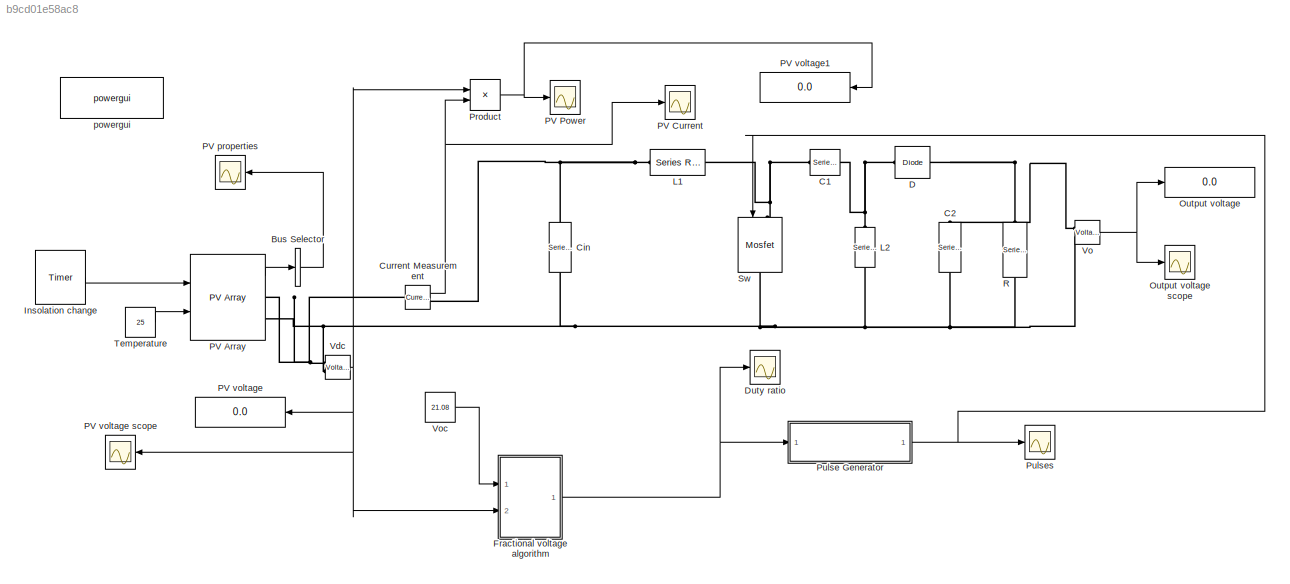
MODEL slx_b9cd01e58ac8
KIND model
CONFIG AbsTol = auto
CONFIG FixedStep = auto
CONFIG MaxStep = auto
CONFIG MinStep = auto
CONFIG RelTol = 1e-3
CONFIG SampleTimeConstraint = Unconstrained
CONFIG Solver = ode45
CONFIG SolverMode = Auto
CONFIG SolverName = ode45
CONFIG StartTime = 0.0
CONFIG StopTime = 10
BLOCK [BusSelector] Bus Selector
  OutputAsBus = on
  OutputSignals = V_PV,I_PV
  Ports = [1, 1]
BLOCK [Reference] C1  REF=powerlib/Elements/Series RLC Branch
  BranchType = C
  Capacitance = 20e-6
  Inductance = 1e-3
  InitialCurrent = 0
  InitialVoltage = 0
  LConnTagsString = __new0
  Measurements = None
  Ports = [0, 0, 0, 0, 0, 1, 1]
  RConnTagsString = __new0
  Resistance = 100
  SetiL0 = off
  Setx0 = off
  SourceBlock = powerlib/Elements/Series RLC Branch
  SourceType = Series RLC Branch
BLOCK [Reference] C2  REF=powerlib/Elements/Series RLC Branch
  BranchType = C
  Capacitance = 150e-6
  Inductance = 1e-3
  InitialCurrent = 0
  InitialVoltage = 0
  LConnTagsString = __new0
  Measurements = None
  Ports = [0, 0, 0, 0, 0, 1, 1]
  RConnTagsString = __new0
  Resistance = 1
  SetiL0 = off
  Setx0 = off
  SourceBlock = powerlib/Elements/Series RLC Branch
  SourceType = Series RLC Branch
BLOCK [Reference] Cin  REF=powerlib/Elements/Series RLC Branch
  BranchType = C
  Capacitance = 440e-6
  Inductance = 1e-3
  InitialCurrent = 0
  InitialVoltage = 0
  LConnTagsString = __new0
  Measurements = None
  Ports = [0, 0, 0, 0, 0, 1, 1]
  RConnTagsString = __new0
  Resistance = 1
  SetiL0 = off
  Setx0 = off
  SourceBlock = powerlib/Elements/Series RLC Branch
  SourceType = Series RLC Branch
BLOCK [Reference] Current Measurement  REF=powerlib/Measurements/Current Measurement
  OutputType = Complex
  PSBequivalent = 0
  PhasorSimulation = off
  Ports = [0, 1, 0, 0, 0, 1, 1]
  SourceBlock = powerlib/Measurements/Current Measurement
  SourceType = Current Measurement
  UserDataPersistent = on
BLOCK [Reference] D  REF=powerlib/Power
Electronics/Diode
  Cs = 250e-9
  IC = 0
  Lon = 0
  Measurements = off
  Ports = [0, 0, 0, 0, 0, 1, 1]
  Ron = 0.001
  Rs = 500
  SourceBlock = powerlib/Power\nElectronics/Diode
  SourceType = Diode
  UseSnubber = off
  Vf = .05
BLOCK [Scope] Duty ratio
  DataFormat = StructureWithTime
  Floating = off
  LimitDataPoints = off
  NumInputPorts = 1
  Ports = [1]
  SampleTime = 0
  SaveName = ScopeData1
  SaveToWorkspace = on
  ShowLegends = on
  TimeRange = 1
  YMax = -117000
  YMin = -138000
  ZoomMode = xonly
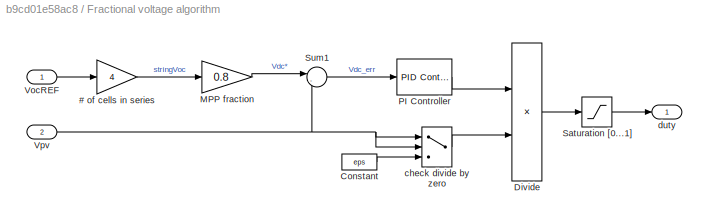
BLOCK [SubSystem] Fractional voltage algorithm
  Ports = [2, 1]
  RequestExecContextInheritance = off
BLOCK [Gain] Fractional voltage algorithm/# of cells in series
  Gain = 4
  OutDataTypeStr = Inherit: Inherit via internal rule
  ParamDataTypeStr = Inherit: Inherit via internal rule
  SaturateOnIntegerOverflow = off
BLOCK [Constant] Fractional voltage algorithm/Constant
  Value = eps
BLOCK [Product] Fractional voltage algorithm/Divide
  InputSameDT = off
  Inputs = */
  OutDataTypeStr = Inherit: Inherit via internal rule
  Ports = [2, 1]
  RndMeth = Floor
  SaturateOnIntegerOverflow = off
BLOCK [Gain] Fractional voltage algorithm/MPP fraction
  Gain = 0.8
  OutDataTypeStr = Inherit: Inherit via internal rule
  ParamDataTypeStr = Inherit: Inherit via internal rule
  SaturateOnIntegerOverflow = off
BLOCK [Reference] Fractional voltage algorithm/PI Controller  REF=simulink/Continuous/PID Controller
  AntiWindupMode = none
  Controller = PI
  ControllerParametersSource = internal
  D = 0
  DGainOutDataTypeStr = Inherit: Inherit via internal rule
  DOutDataTypeStr = Inherit: Inherit via internal rule
  DOutMax = []
  DOutMin = []
  DParamDataTypeStr = Inherit: Inherit via internal rule
  DParamMax = []
  DParamMin = []
  DProdOutDataTypeStr = Inherit: Inherit via internal rule
  DifferentiatorICPrevScaledInput = 0
  DifferentiatorOutDataTypeStr = Inherit: Inherit via internal rule
  DifferentiatorOutMax = []
  DifferentiatorOutMin = []
  ExternalReset = none
  FilterContinuousStateAttributes = ''
  FilterMethod = Forward Euler
  FilterOutDataTypeStr = Inherit: Inherit via internal rule
  FilterOutMax = []
  FilterOutMin = []
  FilterRTWStateStorageClass = Auto
  FilterStateMustResolveToSignalObject = off
  Form = Parallel
  I = 250
  IGainOutDataTypeStr = Inherit: Inherit via internal rule
  IOutDataTypeStr = Inherit: Inherit via internal rule
  IOutMax = []
  IOutMin = []
  IParamDataTypeStr = Inherit: Inherit via internal rule
  IParamMax = []
  IParamMin = []
  IProdOutDataTypeStr = Inherit: Inherit via internal rule
  IgnoreLimit = off
  InitialConditionForFilter = 0
  InitialConditionForIntegrator = 186.4
  InitialConditionSource = internal
  IntegratorContinuousStateAttributes = ''
  IntegratorMethod = Forward Euler
  IntegratorOutDataTypeStr = Inherit: Inherit via internal rule
  IntegratorOutMax = []
  IntegratorOutMin = []
  IntegratorRTWStateStorageClass = Auto
  IntegratorStateMustResolveToSignalObject = off
  Kb = 1
  KbOutDataTypeStr = Inherit: Inherit via internal rule
  KbOutMax = []
  KbOutMin = []
  KbParamDataTypeStr = Inherit: Inherit via internal rule
  KbParamMax = []
  KbParamMin = []
  Kt = 1
  KtOutDataTypeStr = Inherit: Inherit via internal rule
  KtOutMax = []
  KtOutMin = []
  KtParamDataTypeStr = Inherit: Inherit via internal rule
  KtParamMax = []
  KtParamMin = []
  LimitOutput = off
  LinearizeAsGain = off
  LockScale = off
  LowerSaturationLimit = 0
  N = 100
  NGainOutDataTypeStr = Inherit: Inherit via internal rule
  NOutDataTypeStr = Inherit: Inherit via internal rule
  NOutMax = []
  NOutMin = []
  NParamDataTypeStr = Inherit: Inherit via internal rule
  NParamMax = []
  NParamMin = []
  NProdOutDataTypeStr = Inherit: Inherit via internal rule
  P = 1
  PGainOutDataTypeStr = Inherit: Inherit via internal rule
  POutDataTypeStr = Inherit: Inherit via internal rule
  POutMax = []
  POutMin = []
  PParamDataTypeStr = Inherit: Inherit via internal rule
  PParamMax = []
  PParamMin = []
  PProdOutDataTypeStr = Inherit: Inherit via internal rule
  Ports = [1, 1]
  RndMeth = Floor
  SampleTime = 1e-4
  SaturateOnIntegerOverflow = off
  SaturationOutDataTypeStr = Inherit: Same as input
  SaturationOutMax = []
  SaturationOutMin = []
  SourceBlock = simulink/Continuous/PID Controller
  SourceType = PID 1dof
  SumAccumDataTypeStr = Inherit: Inherit via internal rule
  SumDAccumDataTypeStr = Inherit: Inherit via internal rule
  SumDOutDataTypeStr = Inherit: Inherit via internal rule
  SumDOutMax = []
  SumDOutMin = []
  SumI1AccumDataTypeStr = Inherit: Inherit via internal rule
  SumI1OutDataTypeStr = Inherit: Inherit via internal rule
  SumI1OutMax = []
  SumI1OutMin = []
  SumI2AccumDataTypeStr = Inherit: Inherit via internal rule
  SumI2OutDataTypeStr = Inherit: Inherit via internal rule
  SumI2OutMax = []
  SumI2OutMin = []
  SumI3AccumDataTypeStr = Inherit: Inherit via internal rule
  SumI3OutDataTypeStr = Inherit: Inherit via internal rule
  SumI3OutMax = []
  SumI3OutMin = []
  SumOutDataTypeStr = Inherit: Inherit via internal rule
  SumOutMax = []
  SumOutMin = []
  TimeDomain = Discrete-time
  TrackingMode = off
  UpperSaturationLimit = 1
  UseFilter = on
  ZeroCross = off
BLOCK [Saturate] Fractional voltage algorithm/Saturation [0...1]
  InputPortMap = u0
  LowerLimit = 0
  Ports = [1, 1]
  UpperLimit = 1
BLOCK [Sum] Fractional voltage algorithm/Sum1
  IconShape = round
  InputSameDT = off
  Inputs = |-+
  OutDataTypeStr = Inherit: Inherit via internal rule
  Ports = [2, 1]
  SaturateOnIntegerOverflow = off
BLOCK [Inport] Fractional voltage algorithm/VocREF
  IconDisplay = Port number
  OutDataTypeStr = double
  PortDimensions = 1
  SampleTime = [0.0001,0]
  SamplingMode = Sample based
  SignalType = real
BLOCK [Inport] Fractional voltage algorithm/Vpv
  IconDisplay = Port number
  OutDataTypeStr = double
  Port = 2
  PortDimensions = 1
  SampleTime = [0.0001,0]
  SamplingMode = Sample based
  SignalType = real
BLOCK [Switch] Fractional voltage algorithm/check divide by zero
  Criteria = u2 ~= 0
  InputSameDT = off
  SaturateOnIntegerOverflow = off
BLOCK [Outport] Fractional voltage algorithm/duty
  IconDisplay = Port number
  OutDataTypeStr = double
  PortDimensions = 1
  SampleTime = [0.0001,0]
  SamplingMode = Sample based
  SignalType = real
BLOCK [Reference] Insolation change  REF=powerlib_extras/Control 
Blocks/Timer
  Ports = [0, 1]
  SourceBlock = powerlib_extras/Control \nBlocks/Timer
  SourceType = Timer
  e = [270   480]
  t = [0  5]
BLOCK [Reference] L1  REF=powerlib/Elements/Series RLC Branch
  BranchType = L
  Capacitance = 1e-6
  Inductance = 90e-6
  InitialCurrent = 0
  InitialVoltage = 0
  LConnTagsString = __new0
  Measurements = None
  Ports = [0, 0, 0, 0, 0, 1, 1]
  RConnTagsString = __new0
  Resistance = 1
  SetiL0 = off
  Setx0 = off
  SourceBlock = powerlib/Elements/Series RLC Branch
  SourceType = Series RLC Branch
BLOCK [Reference] L2  REF=powerlib/Elements/Series RLC Branch
  BranchType = L
  Capacitance = 1e-6
  Inductance = 90e-6
  InitialCurrent = 0
  InitialVoltage = 0
  LConnTagsString = __new0
  Measurements = None
  Ports = [0, 0, 0, 0, 0, 1, 1]
  RConnTagsString = __new0
  Resistance = 1
  SetiL0 = off
  Setx0 = off
  SourceBlock = powerlib/Elements/Series RLC Branch
  SourceType = Series RLC Branch
BLOCK [Display] Output voltage
  Decimation = 1
  Ports = [1]
BLOCK [Scope] Output voltage scope
  DataFormat = StructureWithTime
  Floating = off
  LimitDataPoints = off
  NumInputPorts = 1
  Ports = [1]
  SampleTime = 0
  SaveName = ScopeData3
  SaveToWorkspace = on
  ShowLegends = on
  TimeRange = 1
  YMax = 2
  YMin = -1
  ZoomMode = xonly
BLOCK [Reference] PV Array  REF=re_lib/Solar/PV Array
  BAL = on
  I0 = 3.4157e-12
  IL = 1.2621
  Im = 1.18
  Isc = 1.26
  ModuleName = User-defined
  Ncell = 36
  Npar = 9
  Nser = 4
  PlotType = one module @ 25 deg.C & specified irradiances
  PlotWhenSelected = on
  Pm = 20.1544
  Ports = [2, 1, 0, 0, 0, 0, 2]
  Rs = 1.4265
  Rsh = 849.2491
  S_vec = [270 480]
  SourceBlock = re_lib/Solar/PV Array
  SourceType = PV array
  Tc = 1e-6
  Temp_C_vec = [ 45 25  ]
  Tfilter = 2e-5
  Vm = 17.08
  Voc = 21.17
  alpha_Isc = 0.00085806
  alpha_Isc_pc = 0.0681
  beta_Voc = -0.062261
  beta_Voc_pc = -0.2941
  nI = 0.85997
BLOCK [Scope] PV Current
  DataFormat = StructureWithTime
  Floating = off
  LimitDataPoints = off
  NumInputPorts = 1
  Ports = [1]
  SampleTime = 0
  SaveName = ScopeData7
  SaveToWorkspace = on
  ShowLegends = on
  TimeRange = 0.02
  YMax = 5.4284
  YMin = 5.4263
  ZoomMode = yonly
BLOCK [Scope] PV Power
  DataFormat = StructureWithTime
  Floating = off
  LegendLocations = 0.89697     0.78958    0.069016     0.02999
  LimitDataPoints = off
  NumInputPorts = 1
  Ports = [1]
  SampleTime = 0
  SaveName = ScopeData6
  SaveToWorkspace = on
  ShowLegends = on
  TimeRange = 0.02
  YMax = 93
  YMin = 82
  ZoomMode = xonly
BLOCK [Scope] PV properties
  DataFormat = StructureWithTime
  Floating = off
  LegendLocations = 0.82648      0.6529    0.093979    0.053097
  LimitDataPoints = off
  NumInputPorts = 1
  Ports = [1]
  SampleTime = 0
  SaveToWorkspace = on
  ShowLegends = on
  TimeRange = 0.02
  YMax = 317.457627118644
  YMin = 77.45762711864404
  ZoomMode = xonly
BLOCK [Display] PV voltage
  Decimation = 1
  Ports = [1]
BLOCK [Scope] PV voltage scope
  DataFormat = StructureWithTime
  Floating = off
  LimitDataPoints = off
  NumInputPorts = 1
  Ports = [1]
  SampleTime = 0
  SaveName = ScopeData5
  SaveToWorkspace = on
  TimeRange = 1
  YMax = 500
  YMin = 0
  ZoomMode = yonly
BLOCK [Display] PV voltage1
  Decimation = 1
  Ports = [1]
BLOCK [Product] Product
  InputSameDT = off
  OutDataTypeStr = Inherit: Inherit via internal rule
  Ports = [2, 1]
  RndMeth = Floor
  SaturateOnIntegerOverflow = off
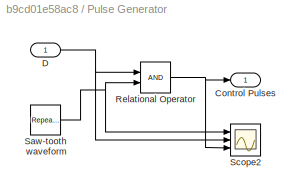
BLOCK [SubSystem] Pulse Generator
  Ports = [1, 1]
  RequestExecContextInheritance = off
BLOCK [Outport] Pulse Generator/Control Pulses
  IconDisplay = Port number
BLOCK [Inport] Pulse Generator/D
  IconDisplay = Port number
BLOCK [RelationalOperator] Pulse Generator/Relational Operator
  InputSameDT = off
  OutDataTypeStr = boolean
  Ports = [2, 1]
BLOCK [Reference] Pulse Generator/Saw-tooth waveform  REF=simulink/Sources/Repeating
Sequence
  Ports = [0, 1]
  SourceBlock = simulink/Sources/Repeating\nSequence
  SourceType = Repeating table
  rep_seq_t = [0 0.5 1]/F
  rep_seq_y = [0 1 0]
BLOCK [Scope] Pulse Generator/Scope2
  DataFormat = StructureWithTime
  Floating = off
  NumInputPorts = 3
  Ports = [3]
  SampleTime = 0
  SaveName = ScopeData2
  TimeRange = 0.004
  YMax = 1~0.7~1
  YMin = 5.55112e-017~0.7~0
  ZoomMode = xonly
BLOCK [Scope] Pulses
  DataFormat = StructureWithTime
  Floating = off
  LimitDataPoints = off
  NumInputPorts = 1
  Ports = [1]
  SampleTime = 0
  SaveName = ScopeData4
  SaveToWorkspace = on
  TimeRange = 1
  YMax = 2
  YMin = -1
  ZoomMode = xonly
BLOCK [Reference] R  REF=powerlib/Elements/Series RLC Branch
  BranchType = R
  Capacitance = 1e-6
  Inductance = 1e-3
  InitialCurrent = 0
  InitialVoltage = 0
  LConnTagsString = __new0
  Measurements = None
  Ports = [0, 0, 0, 0, 0, 1, 1]
  RConnTagsString = __new0
  Resistance = 10
  SetiL0 = off
  Setx0 = off
  SourceBlock = powerlib/Elements/Series RLC Branch
  SourceType = Series RLC Branch
BLOCK [Reference] Sw  REF=powerlib/Power
Electronics/Mosfet
  Cs = inf
  IC = 0
  Lon = 0
  Measurements = off
  Ports = [1, 0, 0, 0, 0, 1, 1]
  Rd = 0.01
  Ron = 0.1
  Rs = 1e5
  SourceBlock = powerlib/Power\nElectronics/Mosfet
  SourceType = Mosfet
  Vfd = 0
BLOCK [Constant] Temperature
  SampleTime = 2e-5
  Value = 25
  VectorParams1D = off
BLOCK [Reference] Vdc   REF=powerlib/Measurements/Voltage Measurement
  AttributesFormatString = \n
  OutputType = Magnitude
  PSBequivalent = 0
  PhasorSimulation = off
  Ports = [0, 1, 0, 0, 0, 2]
  SourceBlock = powerlib/Measurements/Voltage Measurement
  SourceType = Voltage Measurement
  Tag = PoWeRsYsTeMmEaSuReMeNt
BLOCK [Reference] Vo  REF=powerlib/Measurements/Voltage Measurement
  OutputType = Complex
  PSBequivalent = 0
  PhasorSimulation = off
  Ports = [0, 1, 0, 0, 0, 2]
  SourceBlock = powerlib/Measurements/Voltage Measurement
  SourceType = Voltage Measurement
BLOCK [Constant] Voc
  SampleTime = 2e-5
  Value = 21.08
  VectorParams1D = off
BLOCK [Reference] powergui  REF=powerlib/powergui
  DisableRonSwitches = off
  DisableSnubberDevices = off
  DisableVfSwitches = on
  DisplayEquations = off
  DisplayStyle = 1
  EnableUseOfTLC = off
  ErrMax = 1e-4
  Frange = [0:2:500]
  FreqAxis = off
  FunctionMessages = off
  HookPort = off
  Interpol = off
  Iterations = 50
  MaxFrequency = 1000
  Pbase = 100e6
  Ports = []
  Priority = 1
  ResistiveCurrentMeasurement = off
  RestoreLinks = warning
  RmsSteady = 1
  SPID = on
  SampleTime = 50e-6
  ShowGrid = off
  SolverType = Tustin/Backward Euler (TBE)
  SourceBlock = powerlib/powergui
  SourceType = PSB option menu block
  StartTime = 0.0
  SwTol = 0
  Ts = 0
  UnitsV = kV
  UnitsW = MW
  UserDataPersistent = on
  Xlog = on
  Ylog = off
  ZoomFFT = on
  buscounter = 0
  cycles = 1
  display = off
  echomessages = off
  frequency = 50
  frequencyindice = 0
  frequencyindicesteady = 1
  fundamental = 60
  methode = off
  save = off
  structure = 0
  variable = ZData
  x0status = blocks
LINE Bus Selector:1 -> PV properties:1
NET Current Measurement:1 -> PV Current:1, Product:2
LINE Fractional voltage algorithm/# of cells in series:1 -> Fractional voltage algorithm/MPP fraction:1
LINE Fractional voltage algorithm/Constant:1 -> Fractional voltage algorithm/check divide by zero:3
LINE Fractional voltage algorithm/Divide:1 -> Fractional voltage algorithm/Saturation [0...1]:1
LINE Fractional voltage algorithm/MPP fraction:1 -> Fractional voltage algorithm/Sum1:1
LINE Fractional voltage algorithm/PI Controller:1 -> Fractional voltage algorithm/Divide:1
LINE Fractional voltage algorithm/Saturation [0...1]:1 -> Fractional voltage algorithm/duty:1
LINE Fractional voltage algorithm/Sum1:1 -> Fractional voltage algorithm/PI Controller:1
LINE Fractional voltage algorithm/VocREF:1 -> Fractional voltage algorithm/# of cells in series:1
NET Fractional voltage algorithm/Vpv:1 -> Fractional voltage algorithm/Sum1:2, Fractional voltage algorithm/check divide by zero:1, Fractional voltage algorithm/check divide by zero:2
LINE Fractional voltage algorithm/check divide by zero:1 -> Fractional voltage algorithm/Divide:2
NET Fractional voltage algorithm:1 -> Duty ratio:1, Pulse Generator:1
LINE Insolation change:1 -> PV Array:1
LINE PV Array:1 -> Bus Selector:1
NET Product:1 -> PV Power:1, PV voltage1:1
NET Pulse Generator/D:1 -> Pulse Generator/Relational Operator:1, Pulse Generator/Scope2:2
NET Pulse Generator/Relational Operator:1 -> Pulse Generator/Control Pulses:1, Pulse Generator/Scope2:3
NET Pulse Generator/Saw-tooth waveform:1 -> Pulse Generator/Relational Operator:2, Pulse Generator/Scope2:1
NET Pulse Generator:1 -> Pulses:1, Sw:1
LINE Temperature:1 -> PV Array:2
NET Vdc :1 -> Fractional voltage algorithm:2, PV voltage scope:1, PV voltage:1, Product:1
NET Vo:1 -> Output voltage scope:1, Output voltage:1
LINE Voc:1 -> Fractional voltage algorithm:1
PNET net1: C1:LConn1 -- L1:RConn1 -- Sw:LConn1
PNET net2: C1:RConn1 -- D:LConn1 -- L2:LConn1
PNET net3: C2:LConn1 -- D:RConn1 -- R:LConn1 -- Vo:LConn1
PNET net4: C2:RConn1 -- Cin:RConn1 -- L2:RConn1 -- PV Array:RConn2 -- R:RConn1 -- Sw:RConn1 -- Vdc :LConn2 -- Vo:LConn2
PNET net5: Cin:LConn1 -- Current Measurement:RConn1 -- L1:LConn1
PNET net6: Current Measurement:LConn1 -- PV Array:RConn1 -- Vdc :LConn1
note: NET lines group one-source signal fan-out (src -> all destinations, sorted); 1:1 wires keep LINE; PNET lines group multi-terminal physical nets as a canonical sorted terminal list (undirected conserving connections); 2-terminal nets keep the pairwise PLINE form
